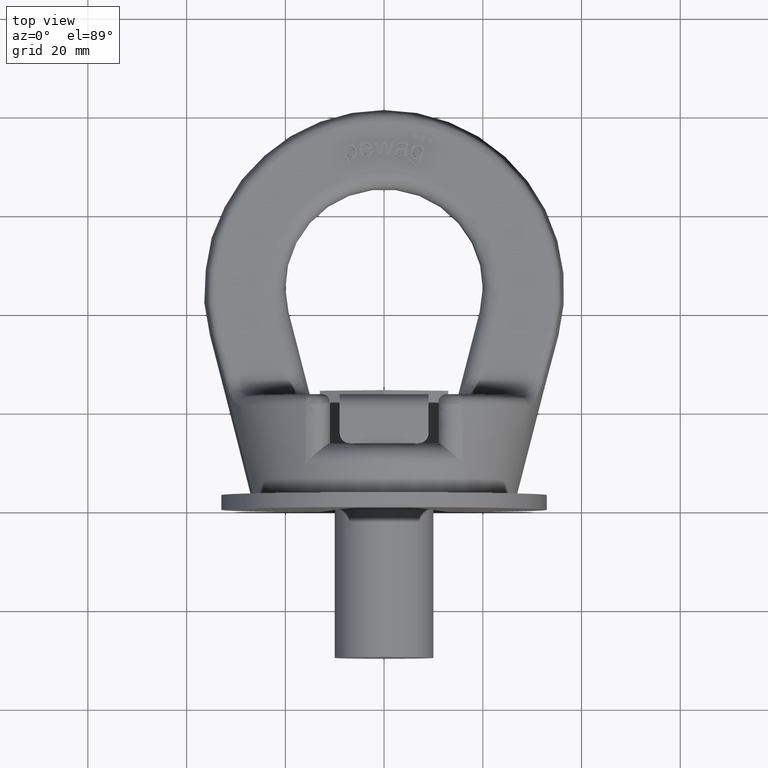
[diagram: clean part render]
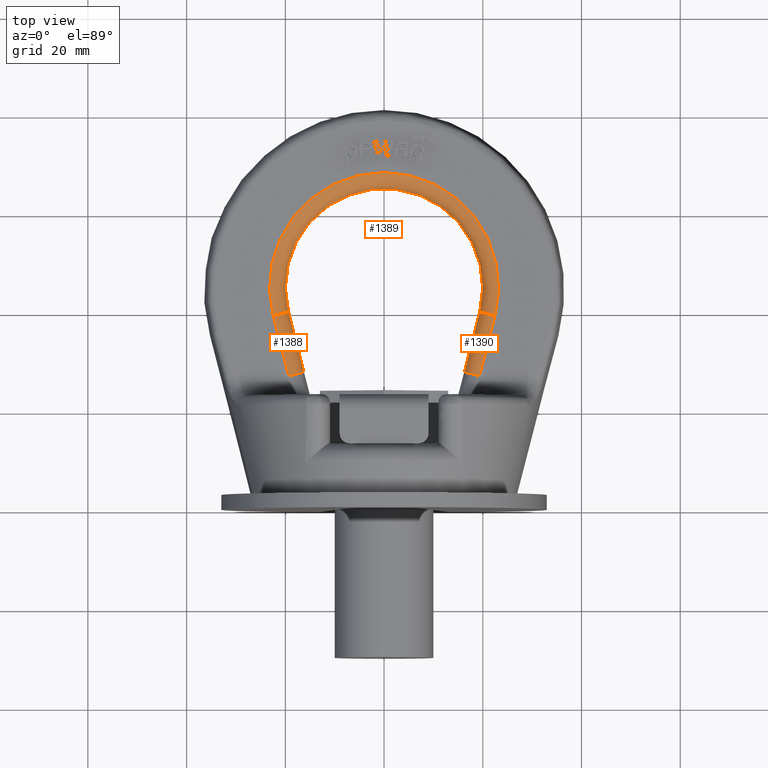
[diagram: same view with one multi-face feature highlighted, each face labeled with its STEP entity id]
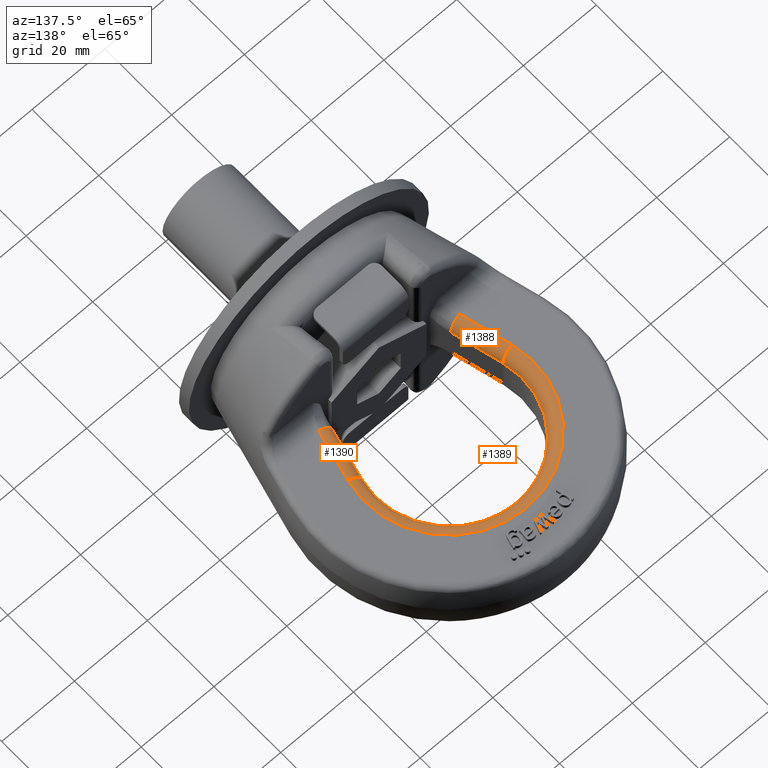
[diagram: same view with one multi-face feature highlighted, each face labeled with its STEP entity id]
A machine part, top view. The highlighted faces form ONE feature: a constant-radius fillet chain: 3 tangent blend faces with common blend radius 3.2 mm. The faces share edges in the B-rep.
A second angle (auxiliary view) of the same feature is appended — it is thin or edge-on in the first view.
Their STEP definitions:
[1] entity #1390 (Cylinder):
#1100=CYLINDRICAL_SURFACE('',#5249,3.2);
#1165=FACE_OUTER_BOUND('',#1912,.T.);
#1390=ADVANCED_FACE('',(#1165),#1100,.T.);
#1743=CIRCLE('',#5246,3.2);
#1744=CIRCLE('',#5248,3.2);
#1912=EDGE_LOOP('',(#3025,#3026,#3027,#3028));
#2145=LINE('',#6454,#2425);
#2196=LINE('',#6932,#2476);
#2425=VECTOR('',#5457,1.);
#2476=VECTOR('',#5574,1.);
#3025=ORIENTED_EDGE('',*,*,#4495,.F.);
#3026=ORIENTED_EDGE('',*,*,#4450,.F.);
#3027=ORIENTED_EDGE('',*,*,#4496,.F.);
#3028=ORIENTED_EDGE('',*,*,#4343,.F.);
#3954=VERTEX_POINT('',#6453);
#3955=VERTEX_POINT('',#6455);
#4049=VERTEX_POINT('',#6916);
#4054=VERTEX_POINT('',#6931);
#4343=EDGE_CURVE('',#3954,#3955,#2145,.T.);
#4450=EDGE_CURVE('',#4054,#4049,#2196,.T.);
#4495=EDGE_CURVE('',#4049,#3954,#1743,.T.);
#4496=EDGE_CURVE('',#3955,#4054,#1744,.T.);
#5246=AXIS2_PLACEMENT_3D('',#7241,#5682,#5683);
#5248=AXIS2_PLACEMENT_3D('',#7243,#5686,#5687);
#5249=AXIS2_PLACEMENT_3D('',#7244,#5688,#5689);
#5457=DIRECTION('',(-0.249489301818012,-0.968377554613055,1.23519652764432E-16));
#5574=DIRECTION('',(0.249489301818012,0.968377554613055,-1.23519652764432E-16));
#5682=DIRECTION('',(0.249489301818012,0.968377554613055,0.));
#5683=DIRECTION('',(0.968377554613055,-0.249489301818013,0.));
#5686=DIRECTION('',(-0.249489301818013,-0.968377554613055,0.));
#5687=DIRECTION('',(0.968377554613055,-0.249489301818013,0.));
#5688=DIRECTION('',(0.249489301818012,0.968377554613055,-1.23519652764432E-16));
#5689=DIRECTION('',(-0.968377554613055,0.249489301818013,0.));
#6453=CARTESIAN_POINT('',(22.4663592670229,39.2118481978221,8.00000000000001));
#6454=CARTESIAN_POINT('',(19.1144546479733,26.2016342341824,8.00000000000001));
#6455=CARTESIAN_POINT('',(19.3201427254803,27.,8.00000000000001));
#6916=CARTESIAN_POINT('',(19.3675510922611,40.0102139636398,4.80000000000001));
#6931=CARTESIAN_POINT('',(16.2213345507185,27.7983657658176,4.80000000000001));
#6932=CARTESIAN_POINT('',(19.3675510922611,40.0102139636397,4.80000000000001));
#7241=CARTESIAN_POINT('',(22.4663592670229,39.2118481978221,4.80000000000001));
#7243=CARTESIAN_POINT('',(19.3201427254803,27.,4.80000000000001));
#7244=CARTESIAN_POINT('',(38.1238304625482,99.9853705783818,4.8));
[2] entity #1389 (Torus):
#1054=TOROIDAL_SURFACE('',#5247,23.2,3.2);
#1164=FACE_OUTER_BOUND('',#1911,.T.);
#1389=ADVANCED_FACE('',(#1164),#1054,.T.);
#1707=CIRCLE('',#5167,23.2);
#1725=CIRCLE('',#5194,20.);
#1742=CIRCLE('',#5244,3.2);
#1743=CIRCLE('',#5246,3.2);
#1911=EDGE_LOOP('',(#3021,#3022,#3023,#3024));
#3021=ORIENTED_EDGE('',*,*,#4494,.F.);
#3022=ORIENTED_EDGE('',*,*,#4442,.F.);
#3023=ORIENTED_EDGE('',*,*,#4495,.T.);
#3024=ORIENTED_EDGE('',*,*,#4342,.F.);
#3953=VERTEX_POINT('',#6452);
#3954=VERTEX_POINT('',#6453);
#4049=VERTEX_POINT('',#6916);
#4050=VERTEX_POINT('',#6918);
#4342=EDGE_CURVE('',#3953,#3954,#1707,.T.);
#4442=EDGE_CURVE('',#4049,#4050,#1725,.T.);
#4494=EDGE_CURVE('',#4050,#3953,#1742,.T.);
#4495=EDGE_CURVE('',#4049,#3954,#1743,.T.);
#5167=AXIS2_PLACEMENT_3D('',#6451,#5455,#5456);
#5194=AXIS2_PLACEMENT_3D('',#6917,#5557,#5558);
#5244=AXIS2_PLACEMENT_3D('',#7239,#5678,#5679);
#5246=AXIS2_PLACEMENT_3D('',#7241,#5682,#5683);
#5247=AXIS2_PLACEMENT_3D('',#7242,#5684,#5685);
#5455=DIRECTION('',(0.,-1.27553196763001E-16,-1.));
#5456=DIRECTION('',(0.,1.,-1.4954512723938E-16));
#5557=DIRECTION('',(0.,1.27553196763001E-16,1.));
#5558=DIRECTION('',(0.,1.,-1.30104260698261E-16));
#5678=DIRECTION('',(0.249489301818013,-0.968377554613055,0.));
#5679=DIRECTION('',(-0.968377554613055,-0.249489301818013,0.));
#5682=DIRECTION('',(0.249489301818012,0.968377554613055,0.));
#5683=DIRECTION('',(0.968377554613055,-0.249489301818013,0.));
#5684=DIRECTION('',(0.,-1.27553196763001E-16,-1.));
#5685=DIRECTION('',(0.,1.,-1.31418445149758E-16));
#6451=CARTESIAN_POINT('',(0.,45.,8.00000000000001));
#6452=CARTESIAN_POINT('',(-22.4663592670229,39.2118481978221,8.00000000000001));
#6453=CARTESIAN_POINT('',(22.4663592670229,39.2118481978221,8.00000000000001));
#6916=CARTESIAN_POINT('',(19.3675510922611,40.0102139636398,4.80000000000001));
#6917=CARTESIAN_POINT('',(0.,45.,4.80000000000001));
#6918=CARTESIAN_POINT('',(-19.3675510922611,40.0102139636398,4.80000000000001));
#7239=CARTESIAN_POINT('',(-22.4663592670229,39.2118481978221,4.80000000000001));
#7241=CARTESIAN_POINT('',(22.4663592670229,39.2118481978221,4.80000000000001));
#7242=CARTESIAN_POINT('',(0.,45.,4.80000000000001));
[3] entity #1388 (Cylinder):
#1099=CYLINDRICAL_SURFACE('',#5245,3.2);
#1163=FACE_OUTER_BOUND('',#1910,.T.);
#1388=ADVANCED_FACE('',(#1163),#1099,.T.);
#1741=CIRCLE('',#5243,3.2);
#1742=CIRCLE('',#5244,3.2);
#1910=EDGE_LOOP('',(#3017,#3018,#3019,#3020));
#2148=LINE('',#6472,#2428);
#2194=LINE('',#6923,#2474);
#2428=VECTOR('',#5462,1.);
#2474=VECTOR('',#5564,1.);
#3017=ORIENTED_EDGE('',*,*,#4493,.F.);
#3018=ORIENTED_EDGE('',*,*,#4445,.F.);
#3019=ORIENTED_EDGE('',*,*,#4494,.T.);
#3020=ORIENTED_EDGE('',*,*,#4349,.F.);
#3953=VERTEX_POINT('',#6452);
#3960=VERTEX_POINT('',#6471);
#4050=VERTEX_POINT('',#6918);
#4052=VERTEX_POINT('',#6924);
#4349=EDGE_CURVE('',#3960,#3953,#2148,.T.);
#4445=EDGE_CURVE('',#4050,#4052,#2194,.T.);
#4493=EDGE_CURVE('',#4052,#3960,#1741,.T.);
#4494=EDGE_CURVE('',#4050,#3953,#1742,.T.);
#5243=AXIS2_PLACEMENT_3D('',#7220,#5676,#5677);
#5244=AXIS2_PLACEMENT_3D('',#7239,#5678,#5679);
#5245=AXIS2_PLACEMENT_3D('',#7240,#5680,#5681);
#5462=DIRECTION('',(-0.249489301818012,0.968377554613055,-1.23519652764432E-16));
#5564=DIRECTION('',(0.249489301818012,-0.968377554613055,1.23519652764432E-16));
#5676=DIRECTION('',(0.249489301818012,-0.968377554613056,-1.04991704849768E-15));
#5677=DIRECTION('',(-0.968377554613056,-0.249489301818012,0.));
#5678=DIRECTION('',(0.249489301818013,-0.968377554613055,0.));
#5679=DIRECTION('',(-0.968377554613055,-0.249489301818013,0.));
#5680=DIRECTION('',(0.249489301818012,-0.968377554613055,1.23519652764432E-16));
#5681=DIRECTION('',(0.968377554613055,0.249489301818013,0.));
#6452=CARTESIAN_POINT('',(-22.4663592670229,39.2118481978221,8.00000000000001));
#6471=CARTESIAN_POINT('',(-19.3201427254803,27.,8.00000000000001));
#6472=CARTESIAN_POINT('',(-22.4663592670229,39.2118481978221,8.00000000000001));
#6918=CARTESIAN_POINT('',(-19.3675510922611,40.0102139636398,4.80000000000001));
#6923=CARTESIAN_POINT('',(-16.0156464732115,27.,4.80000000000001));
#6924=CARTESIAN_POINT('',(-16.2213345507185,27.7983657658176,4.80000000000001));
#7220=CARTESIAN_POINT('',(-19.3201427254803,27.,4.80000000000001));
#7239=CARTESIAN_POINT('',(-22.4663592670229,39.2118481978221,4.80000000000001));
#7240=CARTESIAN_POINT('',(-29.0360733511889,64.7117939388716,4.8));